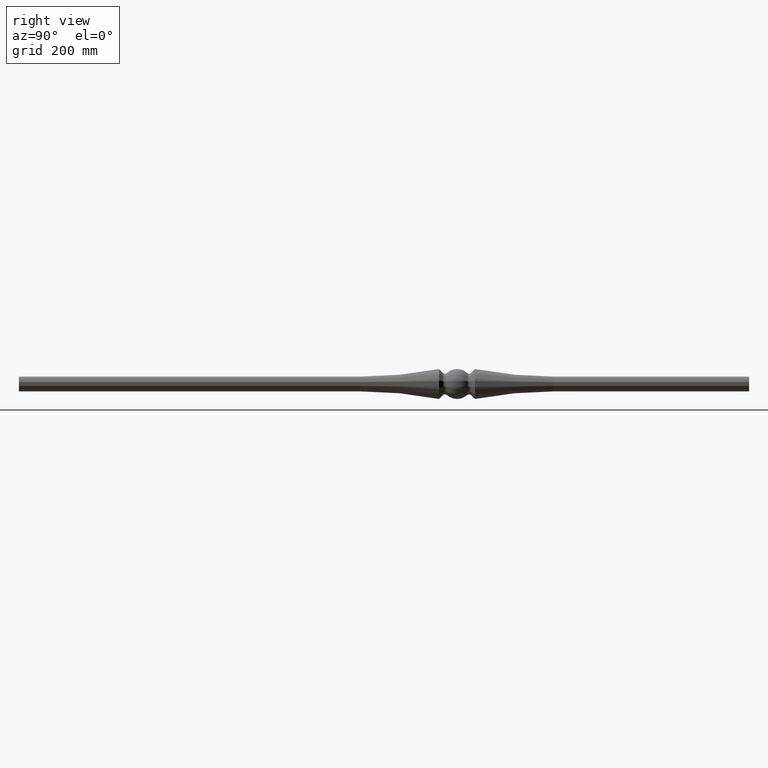
[diagram: clean part render]
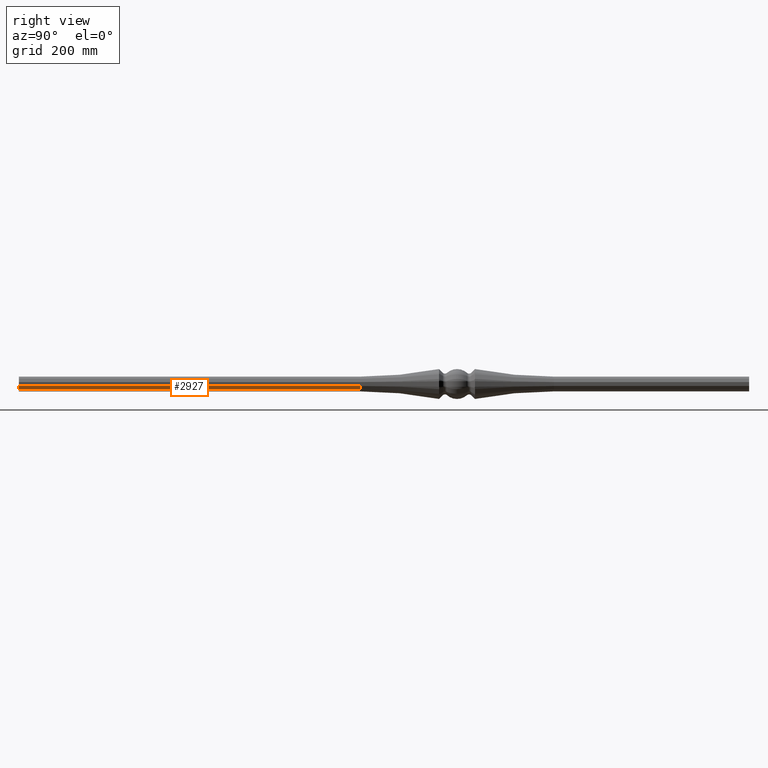
[diagram: same view with one face highlighted and labeled with its STEP entity id]
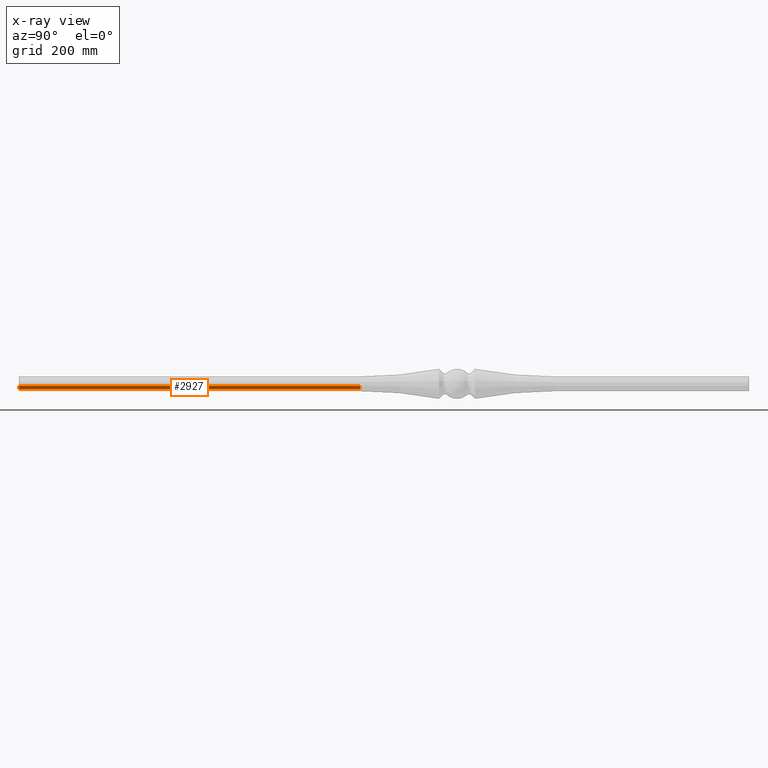
[diagram: x-ray of the same camera — body ghosted, the highlighted face saturated]
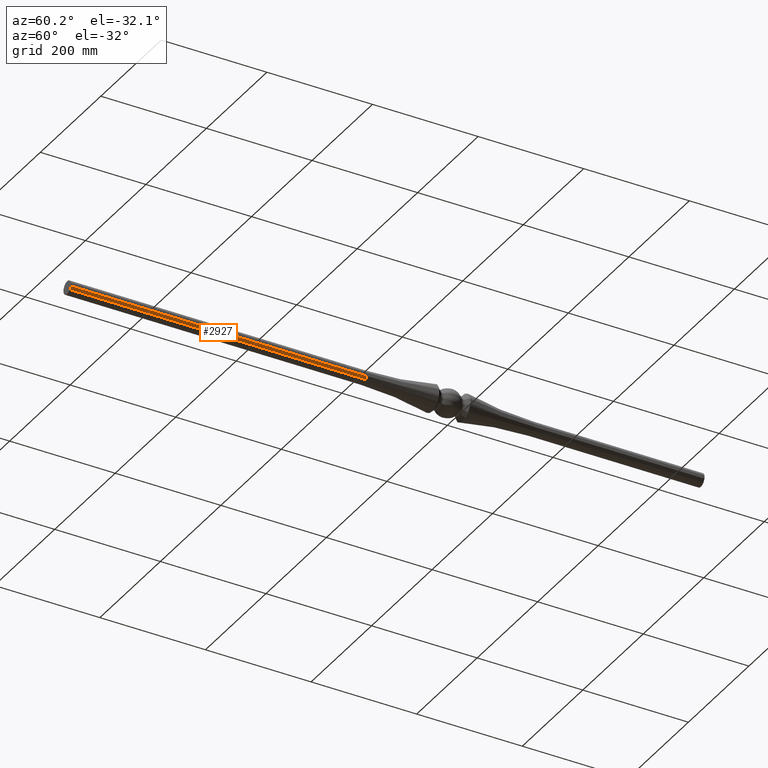
[diagram: same view with one face highlighted and labeled with its STEP entity id]
A machine part, right view. The second image highlights one B-rep face of the part: STEP entity #2927.
The next image is the same camera in x-ray: the body ghosted, the highlighted face saturated — about 0% of this face is hidden behind the body in this view.
A second angle (auxiliary view) of the same face is appended — the face is thin or edge-on in the first view.
In plain terms, the highlighted planar face has unit normal (0.866, 0, -0.5).
Its self-contained STEP definition (entity closure, byte-faithful):
#609 = ORIENTED_EDGE ( 'NONE', *, *, #18627, .F. ) ;
#1327 = LINE ( 'NONE', #1706, #3780 ) ;
#1516 = AXIS2_PLACEMENT_3D ( 'NONE', #4828, #3395, #8037 ) ;
#1527 = EDGE_LOOP ( 'NONE', ( #20102, #609, #10560, #9878 ) ) ;
#1624 = DIRECTION ( 'NONE',  ( -0.4999999999999888978, 0.000000000000000000, -0.8660254037844449249 ) ) ;
#1706 = CARTESIAN_POINT ( 'NONE',  ( 8.910468671655909390, -720.0000000000000000, -8.766615541441240111 ) ) ;
#1753 = CARTESIAN_POINT ( 'NONE',  ( 12.97890738579153691, -159.4142026448495244, -1.719872981077543717 ) ) ;
#1816 = FACE_OUTER_BOUND ( 'NONE', #1527, .T. ) ;
#1856 = CARTESIAN_POINT ( 'NONE',  ( 8.910468671655367601, -159.4142026448495244, -8.766615541441789006 ) ) ;
#1907 = PLANE ( 'NONE',  #1516 ) ;
#2896 = EDGE_CURVE ( 'NONE', #15362, #7624, #10133, .T. ) ;
#2927 = ADVANCED_FACE ( 'NONE', ( #1816 ), #1907, .T. ) ;
#2974 = EDGE_CURVE ( 'NONE', #14728, #5906, #5250, .T. ) ;
#3395 = DIRECTION ( 'NONE',  ( 0.8660254037844450359, 2.401739750415943083E-16, -0.4999999999999889533 ) ) ;
#3780 = VECTOR ( 'NONE', #11050, 1000.000000000000000 ) ;
#4828 = CARTESIAN_POINT ( 'NONE',  ( 12.97890738579158310, -159.4142026448495244, -1.719872981077586349 ) ) ;
#4894 = CARTESIAN_POINT ( 'NONE',  ( 12.97890738579169856, -720.0000000000000000, -1.719872981077653407 ) ) ;
#5250 = LINE ( 'NONE', #1753, #15184 ) ;
#5906 = VERTEX_POINT ( 'NONE', #12344 ) ;
#6861 = EDGE_CURVE ( 'NONE', #15362, #5906, #9305, .T. ) ;
#7195 = VECTOR ( 'NONE', #1624, 1000.000000000000114 ) ;
#7624 = VERTEX_POINT ( 'NONE', #16170 ) ;
#8037 = DIRECTION ( 'NONE',  ( -0.4999999999999888978, 0.000000000000000000, -0.8660254037844449249 ) ) ;
#8547 = CARTESIAN_POINT ( 'NONE',  ( 12.04734609992762628, -720.0000000000000000, -3.333384458558473096 ) ) ;
#9305 = LINE ( 'NONE', #8547, #16546 ) ;
#9878 = ORIENTED_EDGE ( 'NONE', *, *, #6861, .F. ) ;
#10133 = LINE ( 'NONE', #4894, #7195 ) ;
#10560 = ORIENTED_EDGE ( 'NONE', *, *, #2974, .T. ) ;
#11050 = DIRECTION ( 'NONE',  ( -0.000000000000000000, -1.000000000000000000, -0.000000000000000000 ) ) ;
#12344 = CARTESIAN_POINT ( 'NONE',  ( 12.04734609992736516, -159.4142026448495244, -3.333384458558532160 ) ) ;
#14728 = VERTEX_POINT ( 'NONE', #1856 ) ;
#15184 = VECTOR ( 'NONE', #17293, 1000.000000000000114 ) ;
#15362 = VERTEX_POINT ( 'NONE', #19078 ) ;
#16049 = DIRECTION ( 'NONE',  ( 0.000000000000000000, 1.000000000000000000, 0.000000000000000000 ) ) ;
#16170 = CARTESIAN_POINT ( 'NONE',  ( 8.910468671655905837, -720.0000000000000000, -8.766615541441247217 ) ) ;
#16546 = VECTOR ( 'NONE', #16049, 1000.000000000000000 ) ;
#17293 = DIRECTION ( 'NONE',  ( 0.4999999999999888423, 0.000000000000000000, 0.8660254037844449249 ) ) ;
#18627 = EDGE_CURVE ( 'NONE', #14728, #7624, #1327, .T. ) ;
#19078 = CARTESIAN_POINT ( 'NONE',  ( 12.04734609992762984, -720.0000000000000000, -3.333384458558464658 ) ) ;
#20102 = ORIENTED_EDGE ( 'NONE', *, *, #2896, .T. ) ;